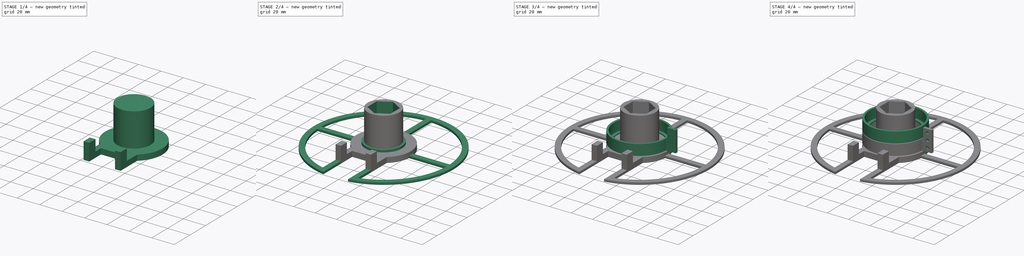
[diagram: build sequence overview — one tinted view per stage of 4, left to right]
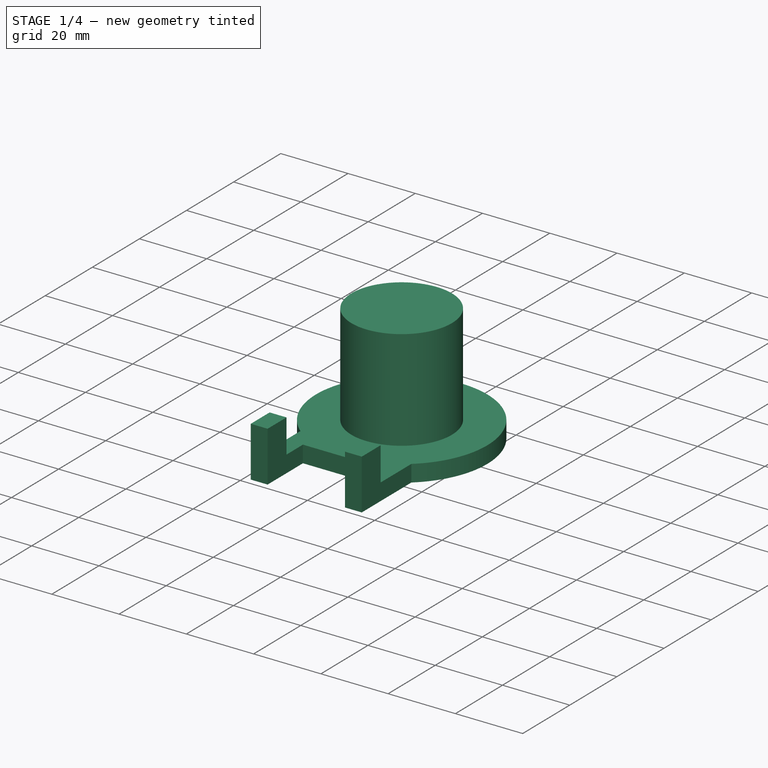
[diagram: stage 1 of 4 — iso view after this stage's code; geometry added in this stage tinted green]
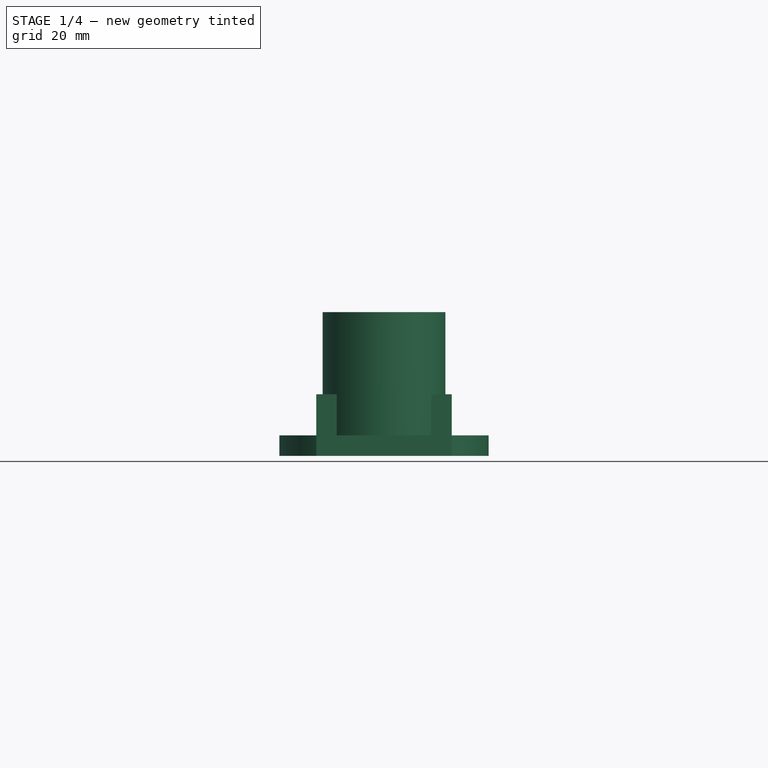
[diagram: stage 1 of 4 — front view after this stage's code; geometry added in this stage tinted green]
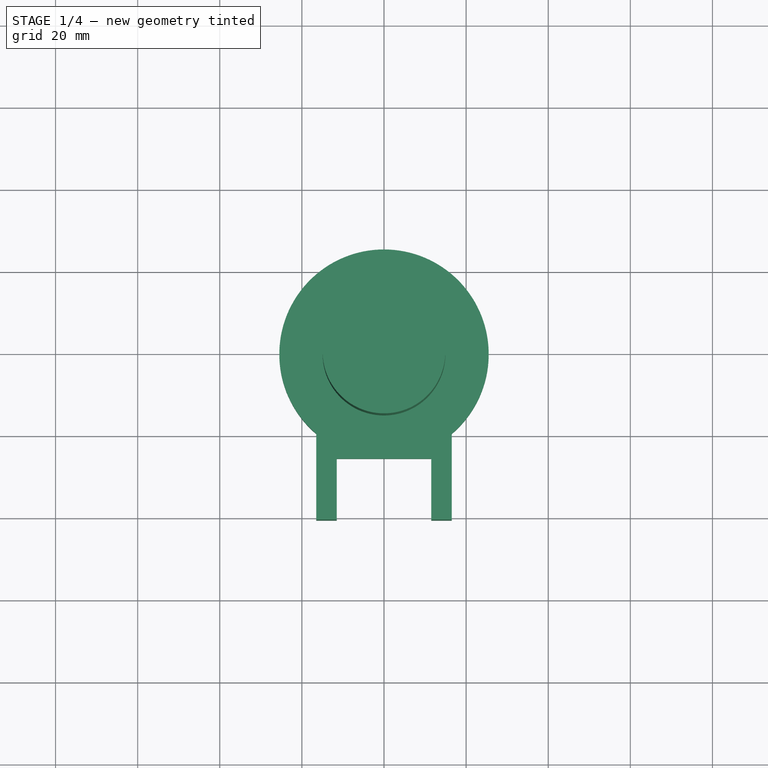
[diagram: stage 1 of 4 — top view after this stage's code; geometry added in this stage tinted green]
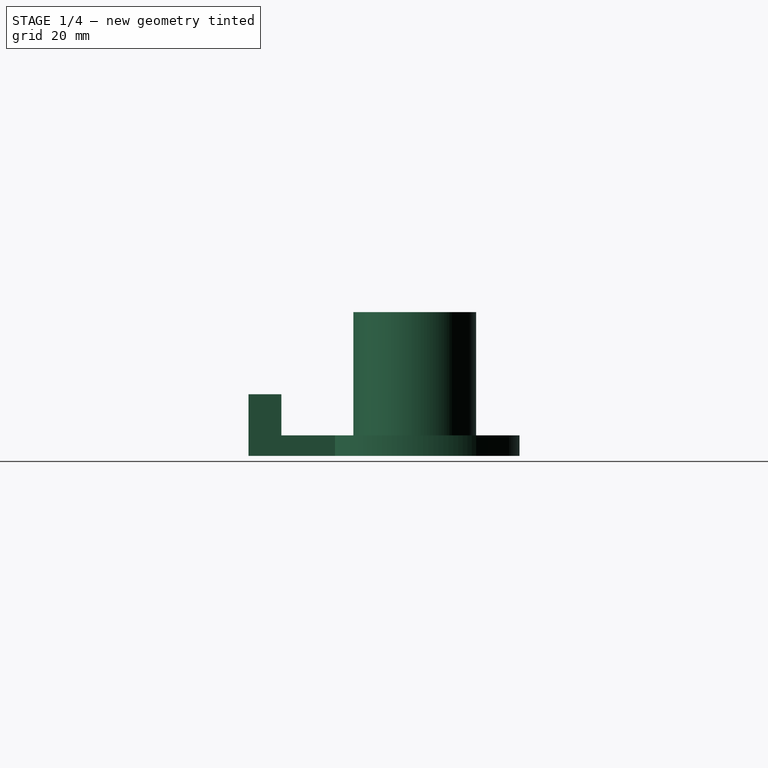
[diagram: stage 1 of 4 — right view after this stage's code; geometry added in this stage tinted green]
FCSTD DOCUMENT  (FreeCAD 0.19R)
Label: Gondola_V1
License: All rights reserved
LicenseURL: http://en.wikipedia.org/wiki/All_rights_reserved
objects: Sketcher::SketchObject×13, PartDesign::Pad×8, PartDesign::Pocket×4, PartDesign::Plane×3, PartDesign::Body×3
note: 43 computed .brp shape members not serialized (recipe doc carries the construction recipe); baked Part::Feature solids carry a one-line shape summary decoded from their .brp

FEATURE [Sketcher::SketchObject] Sketch
  MapMode = 5
  Support = -> [XY_Plane]
  sketch-geometry (8):
    g0: LineSegment StartX=-16.5 StartY=-19.4422 StartZ=0 EndX=-16.5 EndY=-40.5 EndZ=0
    g1: LineSegment StartX=-16.5 StartY=-40.5 StartZ=0 EndX=-11.5 EndY=-40.5 EndZ=0
    g2: LineSegment StartX=-11.5 StartY=-40.5 StartZ=0 EndX=-11.5 EndY=-25.5 EndZ=0
    g3: LineSegment StartX=-11.5 StartY=-25.5 StartZ=0 EndX=11.5 EndY=-25.5 EndZ=0
    g4: LineSegment StartX=11.5 StartY=-25.5 StartZ=0 EndX=11.5 EndY=-40.5 EndZ=0
    g5: LineSegment StartX=11.5 StartY=-40.5 StartZ=0 EndX=16.5 EndY=-40.5 EndZ=0
    g6: LineSegment StartX=16.5 StartY=-40.5 StartZ=0 EndX=16.5 EndY=-19.4422 EndZ=0
    g7: ArcOfCircle CenterX=0 CenterY=0 CenterZ=0 NormalX=0 NormalY=0 NormalZ=1 AngleXU=0 Radius=25.5 StartAngle=5.41611 EndAngle=10.2919
  constraints (23):
    c: Vertical(g0)
    c: Coincident(g0,g1)
    c: Horizontal(g1)
    c: Coincident(g1,g2)
    c: Vertical(g2)
    c: Coincident(g2,g3)
    c: Coincident(g3,g4)
    c: Coincident(g4,g5)
    c: Horizontal(g5)
    c: Coincident(g5,g6)
    c: Vertical(g6)
    c: Coincident(g7,g-1)
    c: Coincident(g7,g0)
    c: Coincident(g7,g6)
    c: Radius(g7) = 25.5
    c: DistanceX(g1,g4) = 23
    c: Vertical(g4)
    c: Symmetric(g3,g2,g-2)
    c: Equal(g1,g5)
    c: DistanceX(g1,g1) = 5
    c: DistanceY(g1,g2) = 15
    c: Equal(g2,g4)
    c: Tangent(g7,g3)
FEATURE [Sketcher::SketchObject] Sketch001
  MapMode = 5
  Placement = pos=(0,0,5) rot=(0,0,1;0rad)
  sketch-geometry (2):
    g0: Circle CenterX=0 CenterY=0 CenterZ=0 NormalX=0 NormalY=0 NormalZ=1 AngleXU=0 Radius=14.9
    g1: Circle CenterX=0 CenterY=0 CenterZ=0 NormalX=0 NormalY=0 NormalZ=1 AngleXU=0 Radius=23.7
  constraints (4):
    c: Coincident(g0,g-1)
    c: Coincident(g1,g0)
    c: Radius(g0) = 14.9
    c: Radius(g1) = 23.7
FEATURE [PartDesign::Pad] Pad
  Direction = (1,1,1)
  Length = 5
  Length2 = 100
  Profile = -> Sketch
  Type = 0
FEATURE [Sketcher::SketchObject] Sketch002
  ExternalGeometry = -> [Pad]
  MapMode = 5
  Placement = pos=(0,0,5) rot=(0,0,1;0rad)
  Support = -> [Pad]
  sketch-geometry (8):
    g0: LineSegment StartX=-16.5 StartY=-40.5 StartZ=0 EndX=-11.5 EndY=-40.5 EndZ=0
    g1: LineSegment StartX=-11.5 StartY=-40.5 StartZ=0 EndX=-11.5 EndY=-32.5 EndZ=0
    g2: LineSegment StartX=-11.5 StartY=-32.5 StartZ=0 EndX=-16.5 EndY=-32.5 EndZ=0
    g3: LineSegment StartX=-16.5 StartY=-32.5 StartZ=0 EndX=-16.5 EndY=-40.5 EndZ=0
    g4: LineSegment StartX=11.5 StartY=-40.5 StartZ=0 EndX=16.5 EndY=-40.5 EndZ=0
    g5: LineSegment StartX=16.5 StartY=-40.5 StartZ=0 EndX=16.5 EndY=-32.5 EndZ=0
    g6: LineSegment StartX=16.5 StartY=-32.5 StartZ=0 EndX=11.5 EndY=-32.5 EndZ=0
    g7: LineSegment StartX=11.5 StartY=-32.5 StartZ=0 EndX=11.5 EndY=-40.5 EndZ=0
  constraints (20):
    c: Coincident(g0,g1)
    c: Coincident(g1,g2)
    c: Coincident(g2,g3)
    c: Coincident(g3,g0)
    c: Horizontal(g2)
    c: Vertical(g1)
    c: Vertical(g3)
    c: Coincident(g0,g-3)
    c: Coincident(g4,g5)
    c: Coincident(g5,g6)
    c: Coincident(g6,g7)
    c: Coincident(g7,g4)
    c: Horizontal(g6)
    c: Vertical(g5)
    c: Vertical(g7)
    c: Coincident(g4,g-4)
    c: Coincident(g4,g-4)
    c: Coincident(g-3,g0)
    c: Equal(g1,g7)
    c: DistanceY(g0,g2) = 8
FEATURE [PartDesign::Pad] Pad001
  BaseFeature = -> Pad
  Direction = (1,1,1)
  Length = 10
  Length2 = 100
  Profile = -> Sketch002
  Type = 0
FEATURE [Sketcher::SketchObject] Sketch003
  MapMode = 5
  Placement = pos=(0,0,5) rot=(0,0,1;0rad)
  Support = -> [Pad001]
  sketch-geometry (1):
    g0: Circle CenterX=0 CenterY=0 CenterZ=0 NormalX=0 NormalY=0 NormalZ=1 AngleXU=0 Radius=14.95
  constraints (2):
    c: Coincident(g0,g-1)
    c: Radius(g0) = 14.95
FEATURE [PartDesign::Pad] Pad002
  BaseFeature = -> Pad001
  Direction = (1,1,1)
  Length = 30
  Length2 = 100
  Profile = -> Sketch003
  Type = 0
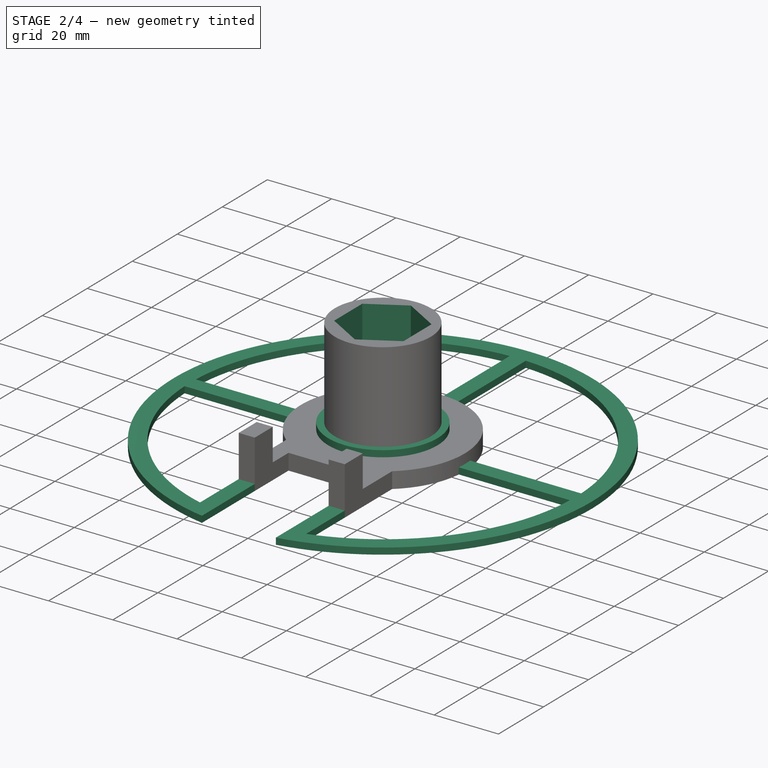
[diagram: stage 2 of 4 — iso view after this stage's code; geometry added in this stage tinted green]
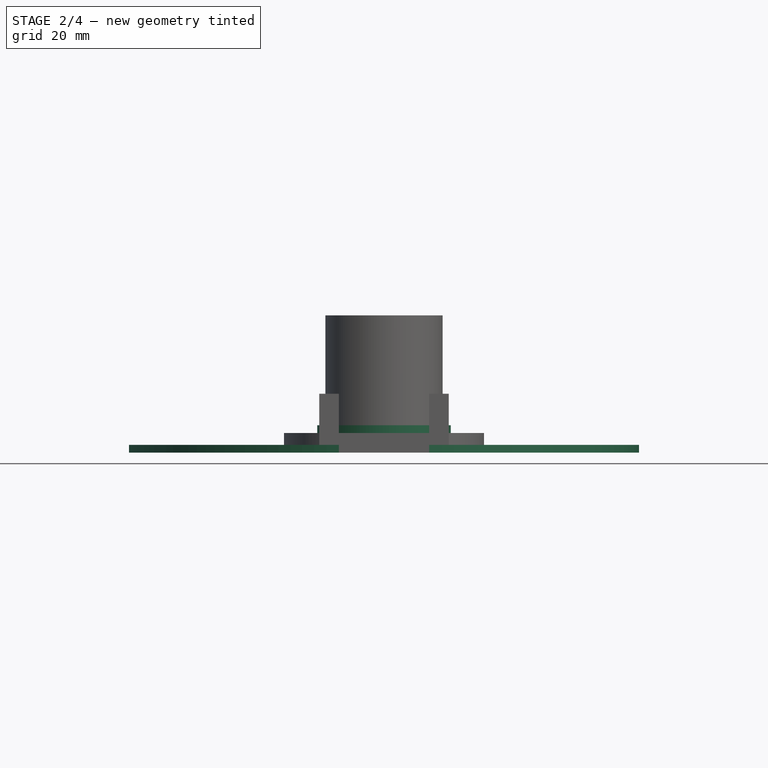
[diagram: stage 2 of 4 — front view after this stage's code; geometry added in this stage tinted green]
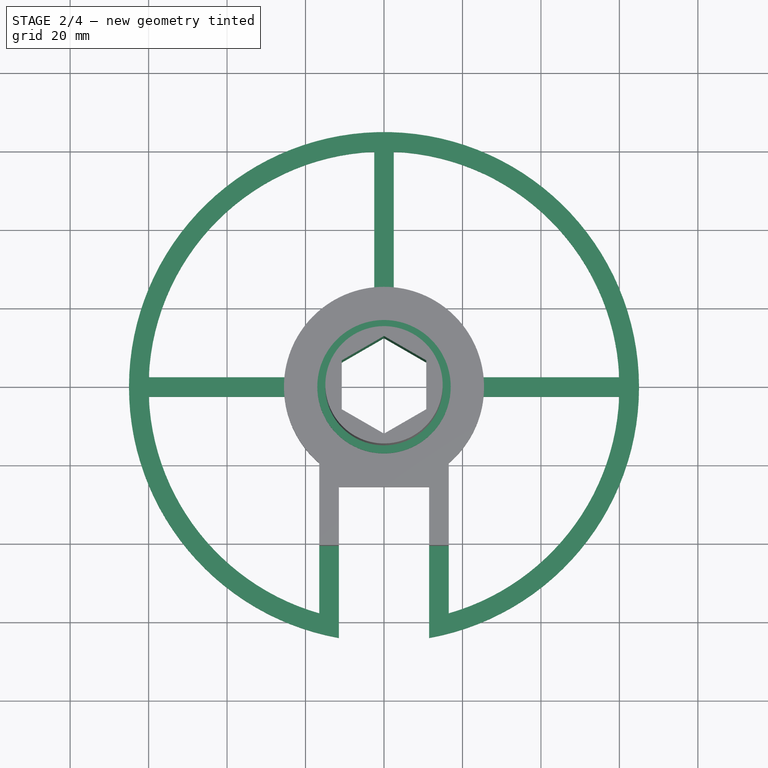
[diagram: stage 2 of 4 — top view after this stage's code; geometry added in this stage tinted green]
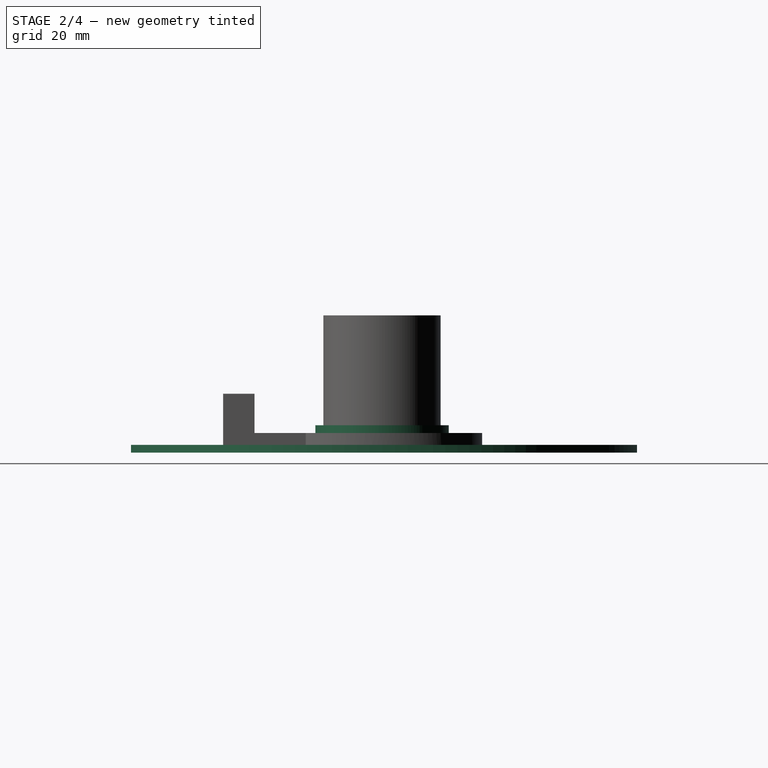
[diagram: stage 2 of 4 — right view after this stage's code; geometry added in this stage tinted green]
FEATURE [Sketcher::SketchObject] Sketch004
  MapMode = 5
  Placement = pos=(0,0,5) rot=(0,0,1;0rad)
  Support = -> [Pad002]
  sketch-geometry (1):
    g0: Circle CenterX=0 CenterY=0 CenterZ=0 NormalX=0 NormalY=0 NormalZ=1 AngleXU=0 Radius=17
  constraints (2):
    c: Coincident(g0,g-1)
    c: Radius(g0) = 17
FEATURE [PartDesign::Pad] Pad003
  BaseFeature = -> Pad002
  Direction = (1,1,1)
  Length = 2
  Length2 = 100
  Profile = -> Sketch004
  Type = 0
FEATURE [Sketcher::SketchObject] Sketch005
  ExternalGeometry = -> [Pad003]
  MapMode = 5
  Placement = pos=(0,0,35) rot=(0,0,1;0rad)
  Support = -> [Pad003]
  sketch-geometry (8):
    g0: LineSegment StartX=10.782 StartY=-6.225 StartZ=0 EndX=10.782 EndY=6.225 EndZ=0
    g1: LineSegment StartX=10.782 StartY=6.225 StartZ=0 EndX=1.8e-15 EndY=12.45 EndZ=0
    g2: LineSegment StartX=1.8e-15 StartY=12.45 StartZ=0 EndX=-10.782 EndY=6.225 EndZ=0
    g3: LineSegment StartX=-10.782 StartY=6.225 StartZ=0 EndX=-10.782 EndY=-6.225 EndZ=0
    g4: LineSegment StartX=-10.782 StartY=-6.225 StartZ=0 EndX=-1.8e-15 EndY=-12.45 EndZ=0
    g5: LineSegment StartX=-1.8e-15 StartY=-12.45 StartZ=0 EndX=10.782 EndY=-6.225 EndZ=0
    g6: Circle [constr] CenterX=0 CenterY=0 CenterZ=0 NormalX=0 NormalY=0 NormalZ=1 AngleXU=0 Radius=12.45
    g7: LineSegment [constr] StartX=-11.1004 StartY=10.0142 StartZ=0 EndX=-9.24411 EndY=8.3396 EndZ=0
  constraints (19):
    c: Coincident(g0,g1)
    c: Coincident(g1,g2)
    c: Coincident(g2,g3)
    c: Coincident(g3,g4)
    c: Coincident(g4,g5)
    c: Coincident(g5,g0)
    c: Equal(g0, g1-g5) x5
    c: PointOnObject(g0,g6)
    c: PointOnObject(g1,g6)
    c: PointOnObject(g2,g6)
    c: PointOnObject(g3,g6)
    c: PointOnObject(g4,g6)
    c: PointOnObject(g5,g6)
    c: Coincident(g6,g-1)
    c: Vertical(g0)
    c: PointOnObject(g7,g-3)
    c: PointOnObject(g7,g6)
    c: Perpendicular(g6,g7)
    c: Distance(g7) = 2.5
FEATURE [PartDesign::Pocket] Pocket
  BaseFeature = -> Pad003
  Length = 5
  Length2 = 100
  Profile = -> Sketch005
  Type = 1
FEATURE [PartDesign::Body] Body001  label="LowerRing"
  Group = -> [DatumPlane,Sketch006,Pad004,Sketch007,Pocket001,DatumPlane002,Sketch010,Pad006,Sketch011,Pocket003]
  Origin = -> Origin001
  Tip = -> Pocket003
FEATURE [Sketcher::SketchObject] Sketch012
  ExternalGeometry = -> [Pocket]
  MapMode = 5
  Support = -> [XY_Plane]
  sketch-geometry (20):
    g0: ArcOfCircle CenterX=0 CenterY=0 CenterZ=0 NormalX=0 NormalY=0 NormalZ=1 AngleXU=0 Radius=60 StartAngle=4.99098 EndAngle=6.24151
    g1: ArcOfCircle CenterX=0 CenterY=0 CenterZ=0 NormalX=0 NormalY=0 NormalZ=1 AngleXU=0 Radius=65 StartAngle=4.89025 EndAngle=10.8177
    g2: LineSegment StartX=-16.5 StartY=-40.5 StartZ=0 EndX=-16.5 EndY=-57.6867 EndZ=0
    g3: LineSegment StartX=11.5 StartY=-40.5 StartZ=0 EndX=11.5 EndY=-63.9746 EndZ=0
    g4: LineSegment StartX=16.5 StartY=-40.5 StartZ=0 EndX=16.5 EndY=-57.6867 EndZ=0
    g5: LineSegment StartX=-16.5 StartY=-40.5 StartZ=0 EndX=-11.5 EndY=-40.5 EndZ=0
    g6: LineSegment StartX=11.5 StartY=-40.5 StartZ=0 EndX=16.5 EndY=-40.5 EndZ=0
    g7: LineSegment StartX=-11.5 StartY=-40.5 StartZ=0 EndX=-11.5 EndY=-63.9746 EndZ=0
    g8: ArcOfCircle CenterX=0 CenterY=0 CenterZ=0 NormalX=0 NormalY=0 NormalZ=1 AngleXU=0 Radius=25.5 StartAngle=3.0434 EndAngle=3.23979
    g9: ArcOfCircle CenterX=0 CenterY=0 CenterZ=0 NormalX=0 NormalY=0 NormalZ=1 AngleXU=0 Radius=25.5 StartAngle=6.18499 EndAngle=6.38138
    g10: ArcOfCircle CenterX=0 CenterY=0 CenterZ=0 NormalX=0 NormalY=0 NormalZ=1 AngleXU=0 Radius=25.5 StartAngle=1.4726 EndAngle=1.66899
    g11: LineSegment StartX=-25.3772 StartY=2.5 StartZ=0 EndX=-59.9479 EndY=2.5 EndZ=0
    g12: LineSegment StartX=-25.3772 StartY=-2.5 StartZ=0 EndX=-59.9479 EndY=-2.5 EndZ=0
    g13: LineSegment StartX=25.3772 StartY=-2.5 StartZ=0 EndX=59.9479 EndY=-2.5 EndZ=0
    g14: LineSegment StartX=25.3772 StartY=2.5 StartZ=0 EndX=59.9479 EndY=2.5 EndZ=0
    g15: LineSegment StartX=-2.5 StartY=25.3772 StartZ=0 EndX=-2.5 EndY=59.9479 EndZ=0
    g16: LineSegment StartX=2.5 StartY=25.3772 StartZ=0 EndX=2.5 EndY=59.9479 EndZ=0
    g17: ArcOfCircle CenterX=0 CenterY=0 CenterZ=0 NormalX=0 NormalY=0 NormalZ=1 AngleXU=0 Radius=60 StartAngle=3.18327 EndAngle=4.4338
    g18: ArcOfCircle CenterX=0 CenterY=0 CenterZ=0 NormalX=0 NormalY=0 NormalZ=1 AngleXU=0 Radius=60 StartAngle=0.0416787 EndAngle=1.52912
    g19: ArcOfCircle CenterX=0 CenterY=0 CenterZ=0 NormalX=0 NormalY=0 NormalZ=1 AngleXU=0 Radius=60 StartAngle=1.61248 EndAngle=3.09991
  constraints (57):
    c: Coincident(g2,g17)
    c: Coincident(g-3,g2)
    c: Vertical(g2)
    c: Radius(g0) = 60
    c: Radius(g1) = 65
    c: Coincident(g3,g-5)
    c: Vertical(g3)
    c: Coincident(g4,g-5)
    c: Vertical(g4)
    c: Coincident(g4,g0)
    c: Coincident(g3,g1)
    c: Coincident(g5,g2)
    c: Coincident(g5,g-4)
    c: Coincident(g6,g3)
    c: Coincident(g6,g4)
    c: Coincident(g7,g5)
    c: Coincident(g7,g1)
    c: Vertical(g7)
    c: Coincident(g1,g0)
    c: Coincident(g0,g-1)
    c: Coincident(g8,g0)
    c: Coincident(g9,g0)
    c: Coincident(g10,g0)
    c: Coincident(g11,g8)
    c: Horizontal(g11)
    c: Coincident(g12,g8)
    c: Horizontal(g12)
    c: Coincident(g13,g9)
    c: Horizontal(g13)
    c: Coincident(g14,g9)
    c: Horizontal(g14)
    c: Coincident(g15,g10)
    c: PointOnObject(g15,g0)
    c: Coincident(g16,g10)
    c: Equal(g0,g17)
    c: Coincident(g19,g11)
    c: Coincident(g17,g12)
    c: Coincident(g0,g17)
    c: Equal(g0,g18)
    c: Coincident(g0,g13)
    c: Coincident(g18,g14)
    c: Coincident(g0,g18)
    c: Equal(g18,g19)
    c: PointOnObject(g18,g16)
    c: PointOnObject(g19,g15)
    c: Coincident(g18,g19)
    c: Symmetric(g8,g8,g-1)
    c: DistanceY(g12,g11) = 5
    c: Symmetric(g0,g14,g-1)
    c: DistanceX(g10,g10) = 5
    c: DistanceY(g9,g9) = 5
    c: Equal(g9,g-6)
    c: Equal(g10,g-6)
    c: Symmetric(g16,g15,g-2)
    c: Vertical(g16)
    c: Equal(g8,g-6)
    c: Vertical(g15)
FEATURE [PartDesign::Pad] Pad007
  BaseFeature = -> Pocket
  Direction = (1,1,1)
  Length = 2
  Length2 = 100
  Profile = -> Sketch012
  Type = 0
FEATURE [PartDesign::Body] Body  label="Basis"
  Group = -> [Sketch,Sketch001,Pad,Sketch002,Pad001,Sketch003,Pad002,Sketch004,Pad003,Sketch005,Pocket,Sketch012,Pad007]
  Origin = -> Origin
  Tip = -> Pad007
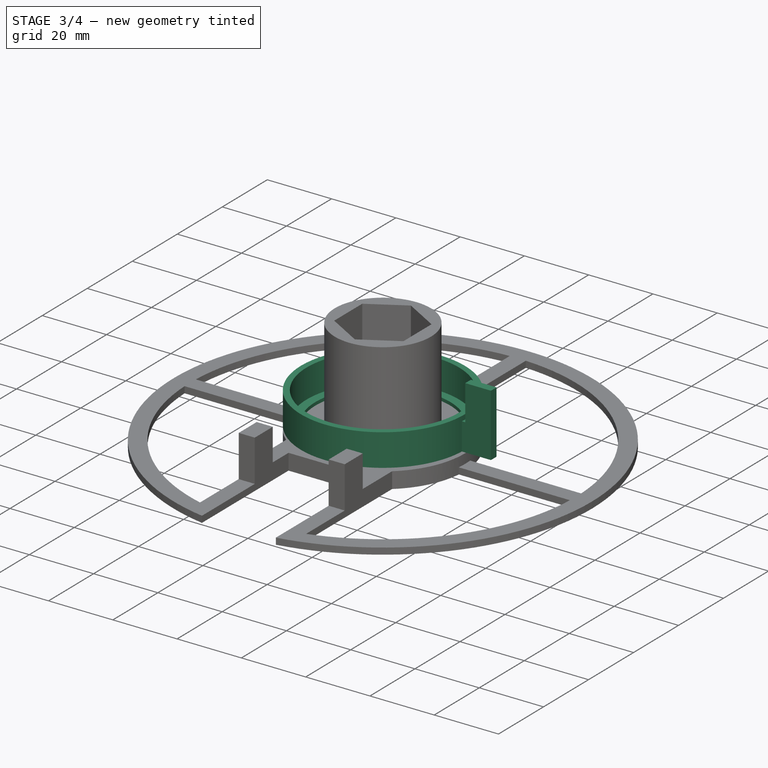
[diagram: stage 3 of 4 — iso view after this stage's code; geometry added in this stage tinted green]
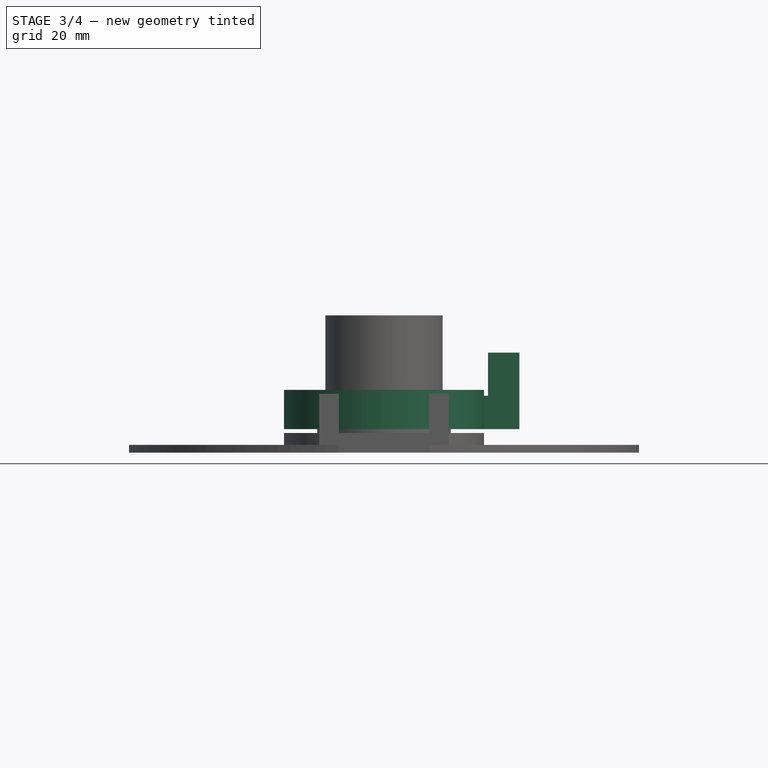
[diagram: stage 3 of 4 — front view after this stage's code; geometry added in this stage tinted green]
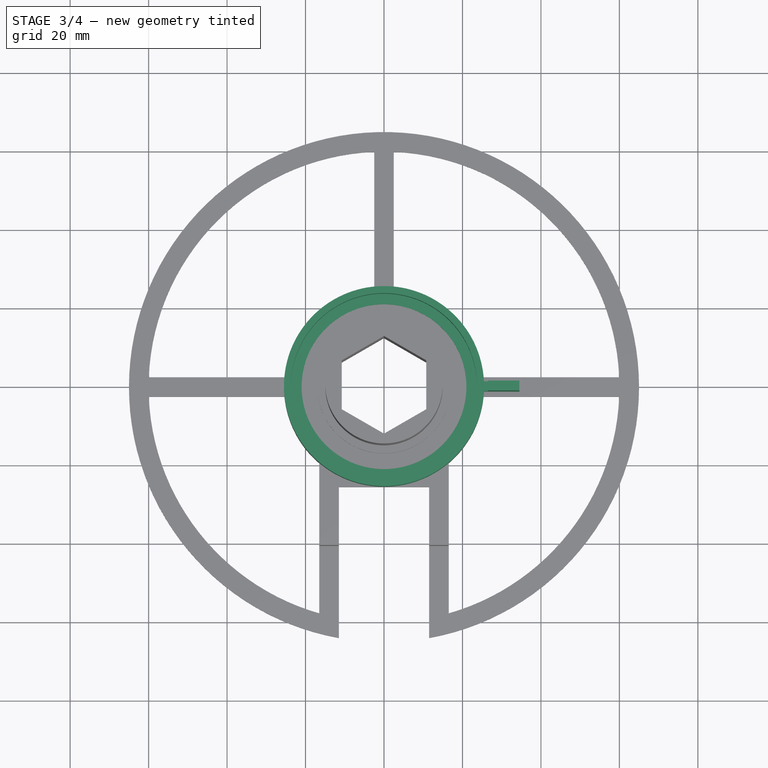
[diagram: stage 3 of 4 — top view after this stage's code; geometry added in this stage tinted green]
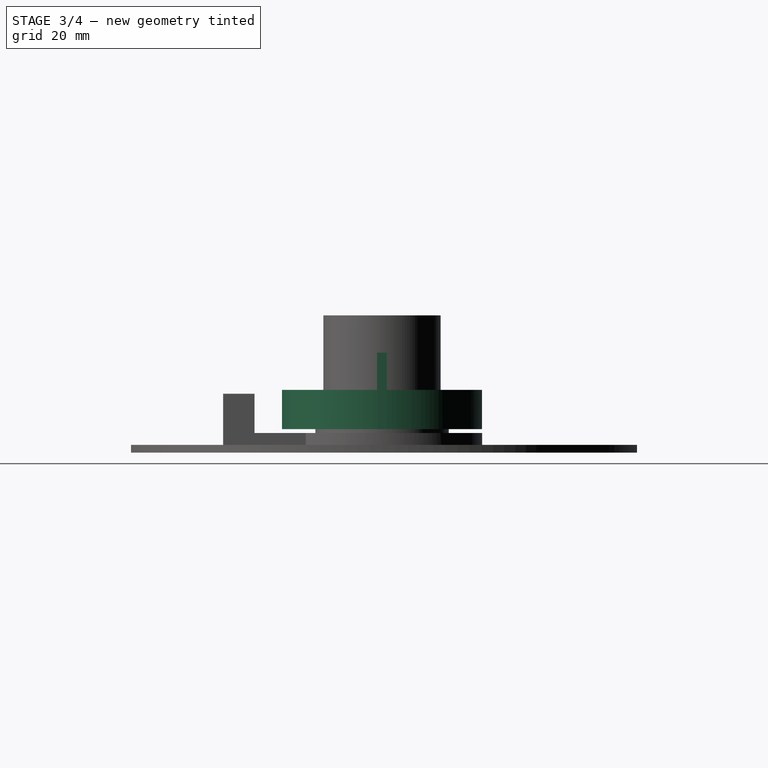
[diagram: stage 3 of 4 — right view after this stage's code; geometry added in this stage tinted green]
FEATURE [PartDesign::Plane] DatumPlane
  AttachmentOffset = pos=(0,0,6) rot=(0,0,1;0rad)
  Length = 71.0585
  MapMode = 5
  Placement = pos=(0,0,6) rot=(0,0,1;0rad)
  ResizeMode = 0
  Support = -> [XY_Plane001]
  Width = 62.0125
FEATURE [Sketcher::SketchObject] Sketch006
  MapMode = 5
  Placement = pos=(0,0,6) rot=(0,0,1;0rad)
  Support = -> [DatumPlane]
  sketch-geometry (2):
    g0: Circle CenterX=0 CenterY=0 CenterZ=0 NormalX=0 NormalY=0 NormalZ=1 AngleXU=0 Radius=25.5
    g1: Circle CenterX=0 CenterY=0 CenterZ=0 NormalX=0 NormalY=0 NormalZ=1 AngleXU=0 Radius=21
  constraints (4):
    c: Coincident(g0,g-1)
    c: Coincident(g1,g0)
    c: Radius(g1) = 21
    c: Radius(g0) = 25.5
FEATURE [PartDesign::Pad] Pad004
  Direction = (1,1,1)
  Length = 10
  Length2 = 100
  Placement = pos=(0,0,6) rot=(0,0,1;0rad)
  Profile = -> Sketch006
  Type = 0
FEATURE [Sketcher::SketchObject] Sketch007
  MapMode = 5
  Placement = pos=(0,0,16) rot=(0,0,1;0rad)
  Support = -> [Pad004]
  sketch-geometry (1):
    g0: Circle CenterX=0 CenterY=0 CenterZ=0 NormalX=0 NormalY=0 NormalZ=1 AngleXU=0 Radius=23.7
  constraints (2):
    c: Coincident(g0,g-1)
    c: Radius(g0) = 23.7
FEATURE [PartDesign::Pocket] Pocket001
  BaseFeature = -> Pad004
  Length = 9
  Length2 = 100
  Placement = pos=(0,0,6) rot=(0,0,1;0rad)
  Profile = -> Sketch007
  Type = 0
FEATURE [PartDesign::Body] Body002  label="UpperRing"
  Group = -> [DatumPlane001,Sketch008,Pad005,Sketch009,Pocket002]
  Origin = -> Origin002
  Tip = -> Pocket002
FEATURE [PartDesign::Plane] DatumPlane002
  AttachmentOffset = pos=(0,6,24.5) rot=(0,1,0;1.5708rad)
  Length = 71.0091
  MapMode = 2
  Placement = pos=(24.5,-4.1e-15,6) rot=(0,0.707107,0.707107;3.14159rad)
  ResizeMode = 0
  Support = -> [Y_Axis001]
  Width = 61.5091
FEATURE [Sketcher::SketchObject] Sketch010
  MapMode = 5
  Placement = pos=(24.5,-4.1e-15,6) rot=(0,0.707107,0.707107;3.14159rad)
  Support = -> [DatumPlane002]
  sketch-geometry (6):
    g0: LineSegment StartX=0 StartY=0 StartZ=0 EndX=-10 EndY=0 EndZ=0
    g1: LineSegment StartX=-10 StartY=0 StartZ=0 EndX=-10 EndY=19.5 EndZ=0
    g2: LineSegment StartX=-10 StartY=19.5 StartZ=0 EndX=-2 EndY=19.5 EndZ=0
    g3: LineSegment StartX=-2 StartY=19.5 StartZ=0 EndX=-2 EndY=8.5 EndZ=0
    g4: LineSegment StartX=-2 StartY=8.5 StartZ=0 EndX=0 EndY=8.5 EndZ=0
    g5: LineSegment StartX=0 StartY=8.5 StartZ=0 EndX=0 EndY=0 EndZ=0
  constraints (17):
    c: PointOnObject(g0,g-1)
    c: Coincident(g0,g1)
    c: Vertical(g1)
    c: Coincident(g1,g2)
    c: Horizontal(g2)
    c: Coincident(g2,g3)
    c: Vertical(g3)
    c: Coincident(g3,g4)
    c: Horizontal(g4)
    c: Coincident(g4,g5)
    c: Coincident(g0,g5)
    c: Vertical(g5)
    c: DistanceY(g5,g5) = 8.5
    c: DistanceX(g3) = -2
    c: DistanceX(g2,g2) = 8
    c: Coincident(g-1,g0)
    c: DistanceY(g3,g3) = 11
FEATURE [PartDesign::Pad] Pad006
  BaseFeature = -> Pocket001
  Direction = (1,1,1)
  Length = 2.5
  Length2 = 100
  Midplane = true
  Placement = pos=(0,0,6) rot=(0,0,1;0rad)
  Profile = -> Sketch010
  Type = 0
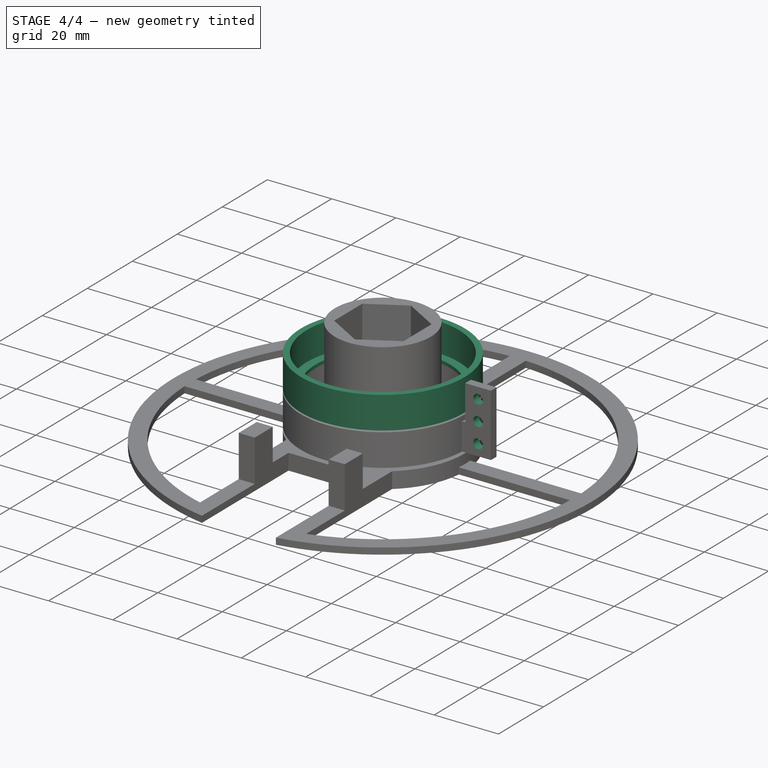
[diagram: stage 4 of 4 — iso view after this stage's code; geometry added in this stage tinted green]
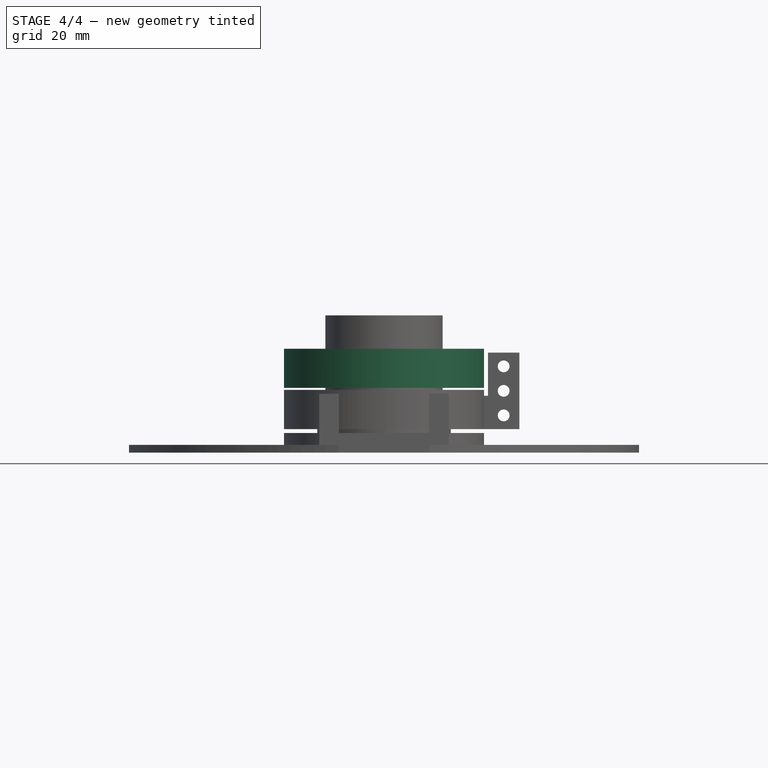
[diagram: stage 4 of 4 — front view after this stage's code; geometry added in this stage tinted green]
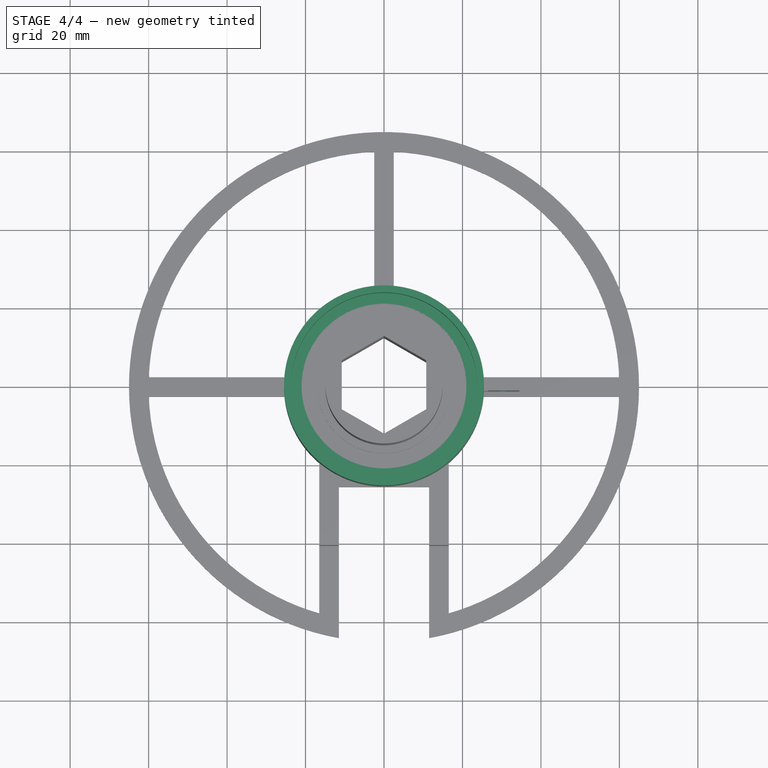
[diagram: stage 4 of 4 — top view after this stage's code; geometry added in this stage tinted green]
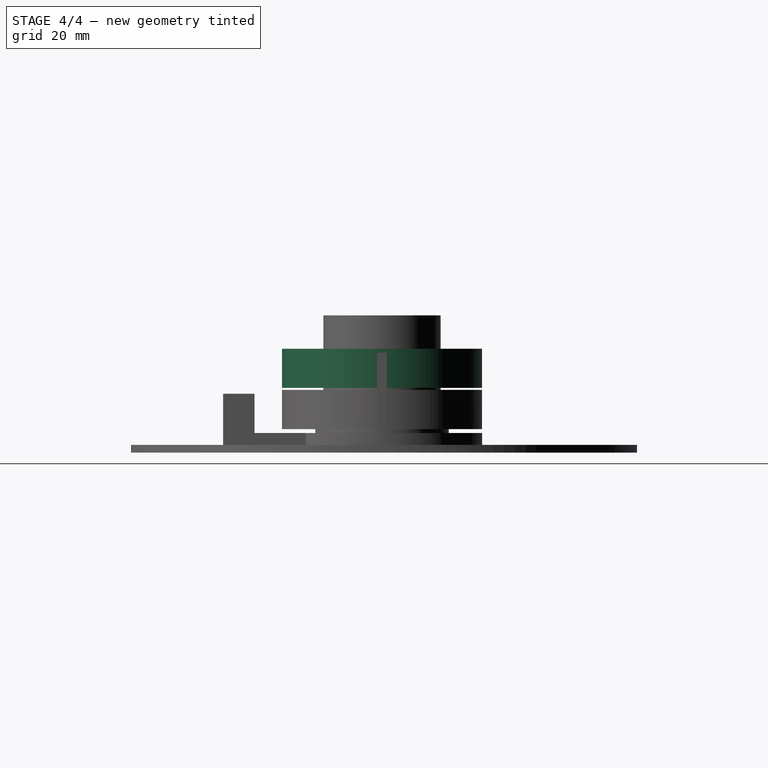
[diagram: stage 4 of 4 — right view after this stage's code; geometry added in this stage tinted green]
FEATURE [PartDesign::Plane] DatumPlane001
  AttachmentOffset = pos=(0,0,16.5) rot=(0,0,1;0rad)
  Length = 61.0944
  MapMode = 5
  Placement = pos=(0,0,16.5) rot=(0,0,1;0rad)
  ResizeMode = 0
  Support = -> [XY_Plane002]
  Width = 61.1403
FEATURE [Sketcher::SketchObject] Sketch008
  MapMode = 5
  Placement = pos=(0,0,16.5) rot=(0,0,1;0rad)
  Support = -> [DatumPlane001]
  sketch-geometry (2):
    g0: Circle CenterX=0 CenterY=0 CenterZ=0 NormalX=0 NormalY=0 NormalZ=1 AngleXU=0 Radius=21
    g1: Circle CenterX=0 CenterY=0 CenterZ=0 NormalX=0 NormalY=0 NormalZ=1 AngleXU=0 Radius=25.5
  constraints (4):
    c: Coincident(g0,g-1)
    c: Coincident(g1,g0)
    c: Radius(g0) = 21
    c: Radius(g1) = 25.5
FEATURE [PartDesign::Pad] Pad005
  Direction = (1,1,1)
  Length = 10
  Length2 = 100
  Placement = pos=(0,0,16.5) rot=(0,0,1;0rad)
  Profile = -> Sketch008
  Type = 0
FEATURE [Sketcher::SketchObject] Sketch009
  MapMode = 5
  Placement = pos=(0,0,26.5) rot=(0,0,1;0rad)
  Support = -> [Pad005]
  sketch-geometry (1):
    g0: Circle CenterX=0 CenterY=0 CenterZ=0 NormalX=0 NormalY=0 NormalZ=1 AngleXU=0 Radius=23.7
  constraints (2):
    c: Coincident(g0,g-1)
    c: Radius(g0) = 23.7
FEATURE [PartDesign::Pocket] Pocket002
  BaseFeature = -> Pad005
  Length = 9
  Length2 = 100
  Placement = pos=(0,0,16.5) rot=(0,0,1;0rad)
  Profile = -> Sketch009
  Type = 0
FEATURE [Sketcher::SketchObject] Sketch011
  ExternalGeometry = -> [Pad006]
  MapMode = 5
  Placement = pos=(-4e-16,-1.25,6) rot=(1,0,0;1.5708rad)
  Support = -> [Pad006]
  sketch-geometry (5):
    g0: Circle CenterX=30.5 CenterY=16 CenterZ=0 NormalX=0 NormalY=0 NormalZ=1 AngleXU=0 Radius=1.5
    g1: LineSegment [constr] StartX=30.5 StartY=19.5 StartZ=0 EndX=30.5 EndY=3.6e-15 EndZ=0
    g2: Circle CenterX=30.5 CenterY=9.75 CenterZ=0 NormalX=0 NormalY=0 NormalZ=1 AngleXU=0 Radius=1.5
    g3: Circle CenterX=30.5 CenterY=3.5 CenterZ=0 NormalX=0 NormalY=0 NormalZ=1 AngleXU=0 Radius=1.5
    g4: Circle [constr] CenterX=30.5 CenterY=9.75 CenterZ=0 NormalX=0 NormalY=0 NormalZ=1 AngleXU=0 Radius=6.25
  constraints (14):
    c: Radius(g0) = 1.5
    c: PointOnObject(g1,g-3)
    c: Symmetric(g-3,g-3,g1)
    c: PointOnObject(g1,g-4)
    c: PointOnObject(g0,g1)
    c: PointOnObject(g2,g1)
    c: PointOnObject(g3,g1)
    c: Equal(g3,g2)
    c: Equal(g2,g0)
    c: DistanceY(g0,g-3) = 3.5
    c: DistanceY(g-4,g3) = 3.5
    c: Coincident(g4,g2)
    c: PointOnObject(g3,g4)
    c: PointOnObject(g0,g4)
FEATURE [PartDesign::Pocket] Pocket003
  BaseFeature = -> Pad006
  Length = 5
  Length2 = 100
  Placement = pos=(0,0,6) rot=(0,0,1;0rad)
  Profile = -> Sketch011
  Type = 1
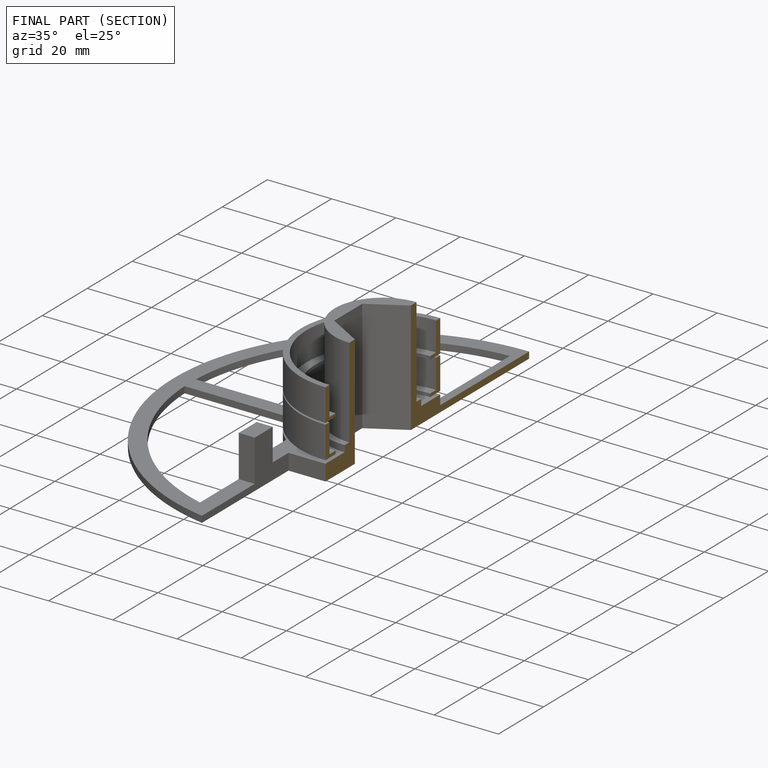
[diagram: finished part — half-section view (interior)]
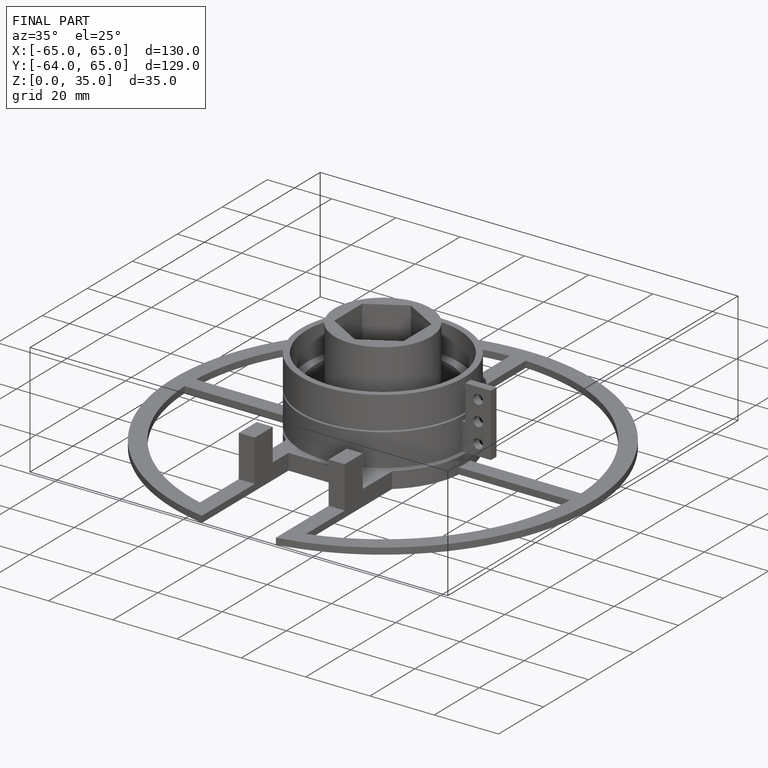
[diagram: finished part — iso view with bounding-box wireframe]
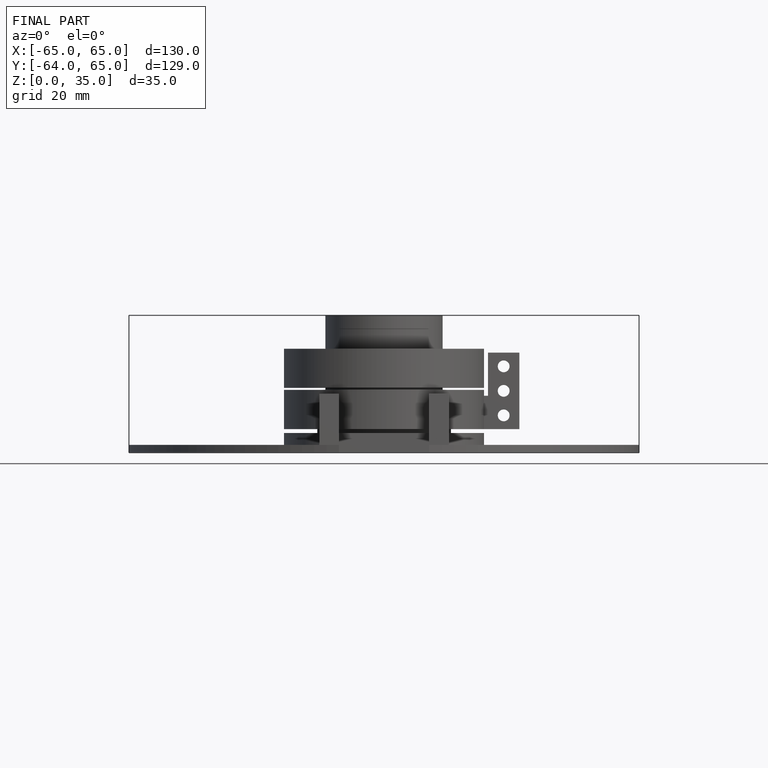
[diagram: finished part — front view with bounding-box wireframe]
